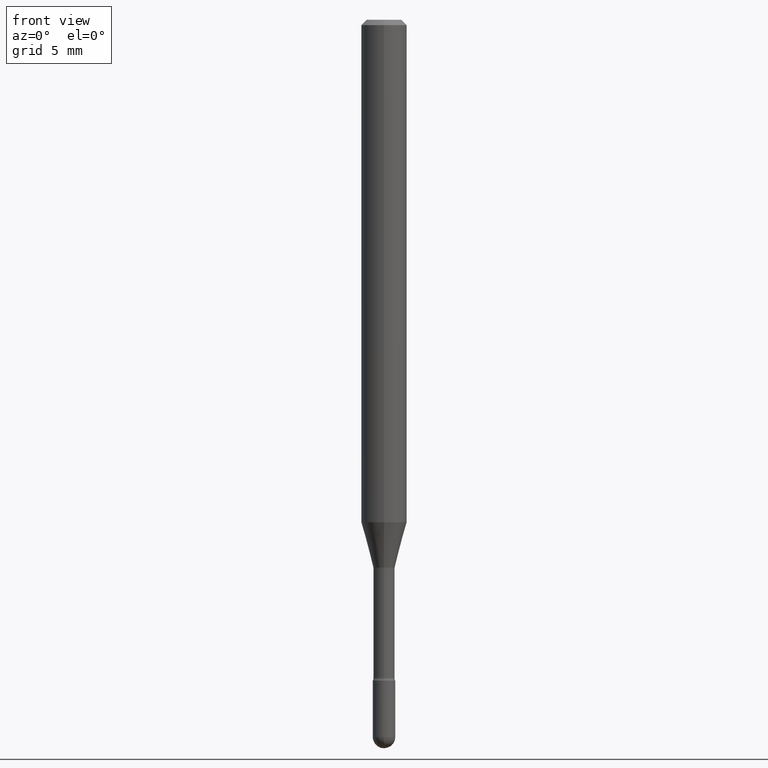
[diagram: clean part render]
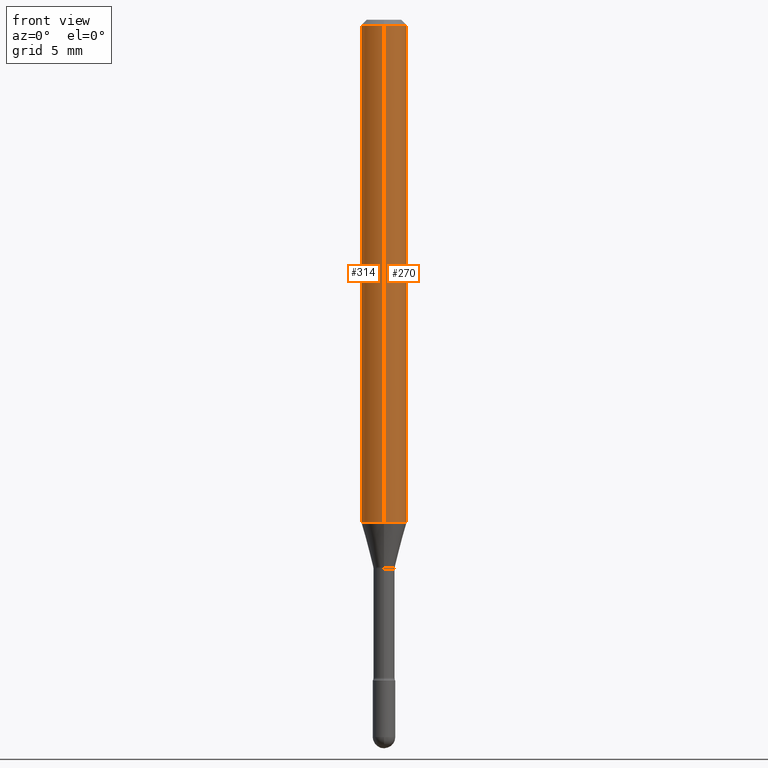
[diagram: same view with one multi-face feature highlighted, each face labeled with its STEP entity id]
A machine part, front view. The highlighted faces form ONE feature: a constant-radius fillet chain: 2 tangent blend faces with common blend radius 1.5875 mm. The faces share edges in the B-rep.
Their STEP definitions:
[1] entity #270 (Cylinder):
#20 = DIRECTION ( 'NONE',  ( -2.445449554586822988E-29, 3.491508908227663846E-15, 1.000000000000000000 ) ) ;
#46 = LINE ( 'NONE', #318, #59 ) ;
#59 = VECTOR ( 'NONE', #505, 39.37007874015748143 ) ;
#66 = ORIENTED_EDGE ( 'NONE', *, *, #491, .F. ) ;
#85 = EDGE_CURVE ( 'NONE', #532, #538, #252, .T. ) ;
#139 = LINE ( 'NONE', #309, #148 ) ;
#146 = CARTESIAN_POINT ( 'NONE',  ( 4.440892098500961428E-16, 0.06249999999999514971, -1.379536105567578552 ) ) ;
#147 = EDGE_LOOP ( 'NONE', ( #407, #283, #459, #66 ) ) ;
#148 = VECTOR ( 'NONE', #201, 39.37007874015748143 ) ;
#172 = CARTESIAN_POINT ( 'NONE',  ( 3.668174331880254643E-31, -5.237263362341524514E-17, -0.01500000000000008271 ) ) ;
#189 = DIRECTION ( 'NONE',  ( -6.982962677686265922E-15, -1.000000000000000000, 4.370956789862821150E-15 ) ) ;
#201 = DIRECTION ( 'NONE',  ( -2.445449554586822708E-29, 3.491508908227663846E-15, 1.000000000000000000 ) ) ;
#214 = DIRECTION ( 'NONE',  ( -6.982962677686265922E-15, -1.000000000000000000, 3.483106191921935554E-15 ) ) ;
#228 = AXIS2_PLACEMENT_3D ( 'NONE', #499, #20, #189 ) ;
#239 = CARTESIAN_POINT ( 'NONE',  ( -4.364351673553912750E-16, -0.06250000000000005551, -0.01499999999999986587 ) ) ;
#252 = CIRCLE ( 'NONE', #496, 0.06250000000000000000 ) ;
#258 = CYLINDRICAL_SURFACE ( 'NONE', #431, 0.06250000000000000000 ) ;
#270 = ADVANCED_FACE ( 'NONE', ( #393 ), #258, .T. ) ;
#283 = ORIENTED_EDGE ( 'NONE', *, *, #478, .T. ) ;
#287 = DIRECTION ( 'NONE',  ( -6.982962677686265922E-15, -1.000000000000000000, 3.491508908227663846E-15 ) ) ;
#309 = CARTESIAN_POINT ( 'NONE',  ( -4.364351673553916201E-16, -0.06250000000000000000, 6.962927056554750043E-16 ) ) ;
#318 = CARTESIAN_POINT ( 'NONE',  ( 4.440892098500625669E-16, 0.06250000000000000000, 2.598540921270170728E-16 ) ) ;
#319 = CIRCLE ( 'NONE', #228, 0.06250000000000000000 ) ;
#357 = CARTESIAN_POINT ( 'NONE',  ( -4.364351673553580935E-16, -0.06250000000000484335, -1.379536105567578108 ) ) ;
#375 = CARTESIAN_POINT ( 'NONE',  ( -1.169113584055446105E-44, 1.669184350826100908E-30, 4.780733988912460139E-16 ) ) ;
#393 = FACE_OUTER_BOUND ( 'NONE', #147, .T. ) ;
#407 = ORIENTED_EDGE ( 'NONE', *, *, #454, .T. ) ;
#431 = AXIS2_PLACEMENT_3D ( 'NONE', #375, #521, #287 ) ;
#454 = EDGE_CURVE ( 'NONE', #464, #473, #319, .T. ) ;
#459 = ORIENTED_EDGE ( 'NONE', *, *, #85, .F. ) ;
#460 = CARTESIAN_POINT ( 'NONE',  ( 4.440892098500965372E-16, 0.06249999999999995837, -0.01500000000000030129 ) ) ;
#464 = VERTEX_POINT ( 'NONE', #357 ) ;
#473 = VERTEX_POINT ( 'NONE', #146 ) ;
#478 = EDGE_CURVE ( 'NONE', #473, #538, #46, .T. ) ;
#482 = DIRECTION ( 'NONE',  ( -2.445449554586822988E-29, 3.491508908227663846E-15, 1.000000000000000000 ) ) ;
#491 = EDGE_CURVE ( 'NONE', #464, #532, #139, .T. ) ;
#496 = AXIS2_PLACEMENT_3D ( 'NONE', #172, #482, #214 ) ;
#499 = CARTESIAN_POINT ( 'NONE',  ( 3.373585954896674557E-29, -4.816662601810898032E-15, -1.379536105567578330 ) ) ;
#505 = DIRECTION ( 'NONE',  ( -2.445449554586822708E-29, 3.491508908227663846E-15, 1.000000000000000000 ) ) ;
#521 = DIRECTION ( 'NONE',  ( -2.445449554586822988E-29, 3.491508908227663846E-15, 1.000000000000000000 ) ) ;
#532 = VERTEX_POINT ( 'NONE', #239 ) ;
#538 = VERTEX_POINT ( 'NONE', #460 ) ;
[2] entity #314 (Cylinder):
#11 = DIRECTION ( 'NONE',  ( -2.445449554586822988E-29, 3.491508908227663846E-15, 1.000000000000000000 ) ) ;
#22 = DIRECTION ( 'NONE',  ( -6.982962677686265922E-15, -1.000000000000000000, 3.483106191921935554E-15 ) ) ;
#30 = DIRECTION ( 'NONE',  ( -2.445449554586822988E-29, 3.491508908227663846E-15, 1.000000000000000000 ) ) ;
#46 = LINE ( 'NONE', #318, #59 ) ;
#53 = CARTESIAN_POINT ( 'NONE',  ( 3.373585954896674557E-29, -4.816662601810898032E-15, -1.379536105567578330 ) ) ;
#59 = VECTOR ( 'NONE', #505, 39.37007874015748143 ) ;
#67 = AXIS2_PLACEMENT_3D ( 'NONE', #53, #11, #263 ) ;
#72 = CYLINDRICAL_SURFACE ( 'NONE', #132, 0.06250000000000000000 ) ;
#91 = AXIS2_PLACEMENT_3D ( 'NONE', #417, #30, #22 ) ;
#101 = CARTESIAN_POINT ( 'NONE',  ( -1.169113584055446105E-44, 1.669184350826100908E-30, 4.780733988912460139E-16 ) ) ;
#107 = FACE_OUTER_BOUND ( 'NONE', #421, .T. ) ;
#132 = AXIS2_PLACEMENT_3D ( 'NONE', #101, #493, #137 ) ;
#137 = DIRECTION ( 'NONE',  ( -6.982962677686265922E-15, -1.000000000000000000, 3.491508908227663846E-15 ) ) ;
#139 = LINE ( 'NONE', #309, #148 ) ;
#146 = CARTESIAN_POINT ( 'NONE',  ( 4.440892098500961428E-16, 0.06249999999999514971, -1.379536105567578552 ) ) ;
#148 = VECTOR ( 'NONE', #201, 39.37007874015748143 ) ;
#149 = ORIENTED_EDGE ( 'NONE', *, *, #491, .T. ) ;
#156 = ORIENTED_EDGE ( 'NONE', *, *, #478, .F. ) ;
#190 = ORIENTED_EDGE ( 'NONE', *, *, #530, .F. ) ;
#201 = DIRECTION ( 'NONE',  ( -2.445449554586822708E-29, 3.491508908227663846E-15, 1.000000000000000000 ) ) ;
#232 = ORIENTED_EDGE ( 'NONE', *, *, #399, .T. ) ;
#239 = CARTESIAN_POINT ( 'NONE',  ( -4.364351673553912750E-16, -0.06250000000000005551, -0.01499999999999986587 ) ) ;
#254 = CIRCLE ( 'NONE', #67, 0.06250000000000000000 ) ;
#259 = CIRCLE ( 'NONE', #91, 0.06250000000000000000 ) ;
#263 = DIRECTION ( 'NONE',  ( -6.982962677686265922E-15, -1.000000000000000000, 4.370956789862821150E-15 ) ) ;
#309 = CARTESIAN_POINT ( 'NONE',  ( -4.364351673553916201E-16, -0.06250000000000000000, 6.962927056554750043E-16 ) ) ;
#314 = ADVANCED_FACE ( 'NONE', ( #107 ), #72, .T. ) ;
#318 = CARTESIAN_POINT ( 'NONE',  ( 4.440892098500625669E-16, 0.06250000000000000000, 2.598540921270170728E-16 ) ) ;
#357 = CARTESIAN_POINT ( 'NONE',  ( -4.364351673553580935E-16, -0.06250000000000484335, -1.379536105567578108 ) ) ;
#399 = EDGE_CURVE ( 'NONE', #473, #464, #254, .T. ) ;
#417 = CARTESIAN_POINT ( 'NONE',  ( 3.668174331880254643E-31, -5.237263362341524514E-17, -0.01500000000000008271 ) ) ;
#421 = EDGE_LOOP ( 'NONE', ( #156, #232, #149, #190 ) ) ;
#460 = CARTESIAN_POINT ( 'NONE',  ( 4.440892098500965372E-16, 0.06249999999999995837, -0.01500000000000030129 ) ) ;
#464 = VERTEX_POINT ( 'NONE', #357 ) ;
#473 = VERTEX_POINT ( 'NONE', #146 ) ;
#478 = EDGE_CURVE ( 'NONE', #473, #538, #46, .T. ) ;
#491 = EDGE_CURVE ( 'NONE', #464, #532, #139, .T. ) ;
#493 = DIRECTION ( 'NONE',  ( -2.445449554586822988E-29, 3.491508908227663846E-15, 1.000000000000000000 ) ) ;
#505 = DIRECTION ( 'NONE',  ( -2.445449554586822708E-29, 3.491508908227663846E-15, 1.000000000000000000 ) ) ;
#530 = EDGE_CURVE ( 'NONE', #538, #532, #259, .T. ) ;
#532 = VERTEX_POINT ( 'NONE', #239 ) ;
#538 = VERTEX_POINT ( 'NONE', #460 ) ;